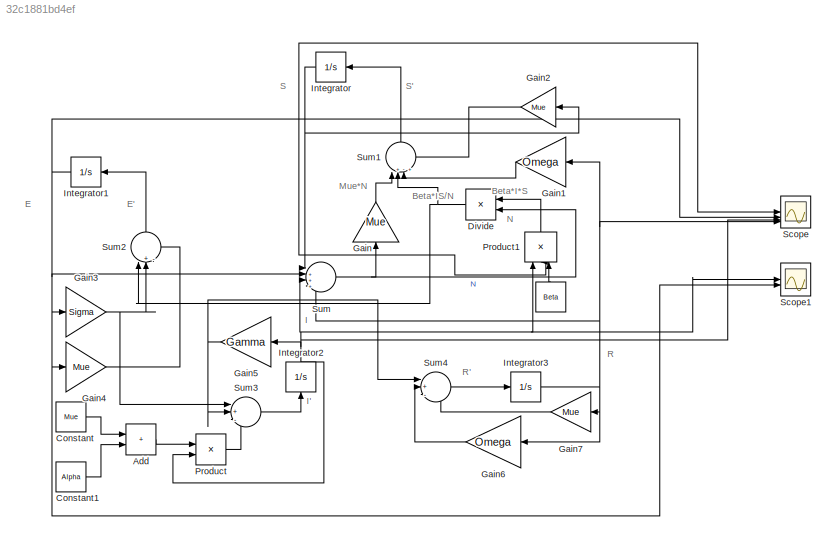
MODEL slx_32c1881bd4ef
KIND model
CONFIG AbsTol = auto
CONFIG EnableMultiTasking = off
CONFIG FixedStep = 5
CONFIG MaxStep = auto
CONFIG MinStep = auto
CONFIG RelTol = 1e-1
CONFIG SampleTimeConstraint = Unconstrained
CONFIG SolverName = ode1
CONFIG StartTime = 0.0
CONFIG StopTime = 2000
BLOCK [Constant]  
  NameLocation = right
  Value = Beta
BLOCK [Sum] Add
  IconShape = rectangular
BLOCK [Constant] Constant
  Value = Mue
BLOCK [Constant] Constant1
  Value = Alpha
BLOCK [Product] Divide
  Inputs = */
  NameLocation = top
BLOCK [Gain] Gain
  Gain = Mue
  NameLocation = right
BLOCK [Gain] Gain1
  Gain = Omega
  NameLocation = top
BLOCK [Gain] Gain2
  Gain = Mue
  NameLocation = top
BLOCK [Gain] Gain3
  Gain = Sigma
BLOCK [Gain] Gain4
  Gain = Mue
BLOCK [Gain] Gain5
  Gain = Gamma
  NameLocation = top
BLOCK [Gain] Gain6
  Gain = Omega
  NameLocation = top
BLOCK [Gain] Gain7
  Gain = Mue
  NameLocation = top
BLOCK [Integrator] Integrator
  InitialCondition = 0.999
  NameLocation = top
BLOCK [Integrator] Integrator1
  InitialCondition = 0.001
  NameLocation = top
BLOCK [Integrator] Integrator2
  NameLocation = right
BLOCK [Integrator] Integrator3
BLOCK [Product] Product
BLOCK [Product] Product1
  Inputs = 3
  NameLocation = right
BLOCK [Scope] Scope
  Floating = off
  NumInputPorts = 4
  ScopeSpecificationString = Simulink.scopes.TimeScopeBlockCfg('CurrentConfiguration', extmgr.ConfigurationSet(extmgr.Configuration('Core','General UI',true),extmgr.Configuration('Core','Source UI',true),extmgr.Configuration('Sources','WiredSimulink',true),extmgr.Configuration('Visuals','Time Domain',true,'SerializedDisplays',{struct('MinYLimReal','-0.12488','MaxYLimReal','1.12388','YLabelReal','','MinYLimMag','0.00000','MaxY...<+1626ch>
BLOCK [Scope] Scope1
  Floating = off
  NumInputPorts = 2
  ScopeSpecificationString = Simulink.scopes.TimeScopeBlockCfg('CurrentConfiguration', extmgr.ConfigurationSet(extmgr.Configuration('Core','General UI',true),extmgr.Configuration('Core','Source UI',true),extmgr.Configuration('Sources','WiredSimulink',true,'DataLoggingVariableName','ScopeData1'),extmgr.Configuration('Visuals','Time Domain',true,'SerializedDisplays',{struct('MinYLimReal','-0.02777','MaxYLimReal','0.2499','YLabe...<+1485ch>
BLOCK [Sum] Sum
  Inputs = |++++
BLOCK [Sum] Sum1
  Inputs = |+-+-
  NameLocation = right
BLOCK [Sum] Sum2
  Inputs = |+--
  NameLocation = right
BLOCK [Sum] Sum3
  Inputs = |+--
BLOCK [Sum] Sum4
  Inputs = |+--
ANNOTATION (root): Beta*I*S
ANNOTATION (root): Beta*IS/N
ANNOTATION (root): Mue*N
ANNOTATION (root): N
ANNOTATION (root): E
ANNOTATION (root): E'
ANNOTATION (root): I
ANNOTATION (root): I'
ANNOTATION (root): R
ANNOTATION (root): R'
ANNOTATION (root): S
ANNOTATION (root): S'
LINE  :1 -> Product1:3
LINE Add:1 -> Product:1
LINE Constant1:1 -> Add:2
LINE Constant:1 -> Add:1
NET Divide:1 -> Sum1:2, Sum2:1
LINE Gain1:1 -> Sum1:3
LINE Gain2:1 -> Sum1:4
NET Gain3:1 -> Sum2:2, Sum3:1
LINE Gain4:1 -> Sum2:3
NET Gain5:1 -> Sum3:2, Sum4:1
LINE Gain6:1 -> Sum4:2
LINE Gain7:1 -> Sum4:3
LINE Gain:1 -> Sum1:1
NET Integrator1:1 -> Gain3:1, Gain4:1, Scope1:2, Scope:2, Sum:2
NET Integrator2:1 -> Gain5:1, Product1:1, Product:2, Scope1:1, Scope:3, Sum:3
NET Integrator3:1 -> Gain1:1, Gain6:1, Gain7:1, Scope:4, Sum:4
NET Integrator:1 -> Gain2:1, Product1:2, Scope:1, Sum:1
LINE Product1:1 -> Divide:1
LINE Product:1 -> Sum3:3
LINE Sum1:1 -> Integrator:1
LINE Sum2:1 -> Integrator1:1
LINE Sum3:1 -> Integrator2:1
LINE Sum4:1 -> Integrator3:1
NET Sum:1 -> Divide:2, Gain:1
note: NET lines group one-source signal fan-out (src -> all destinations, sorted); 1:1 wires keep LINE
